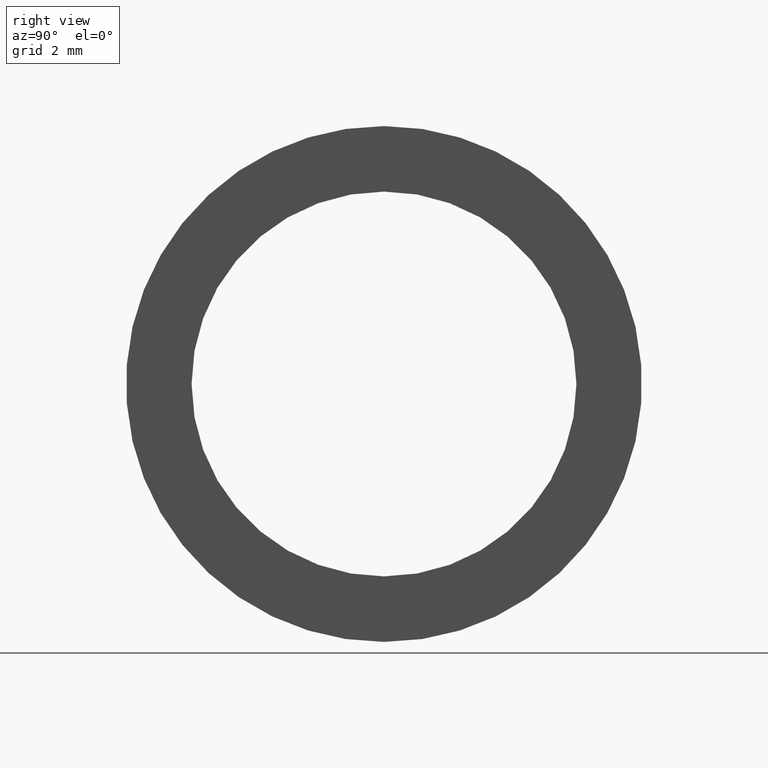
[diagram: clean part render]
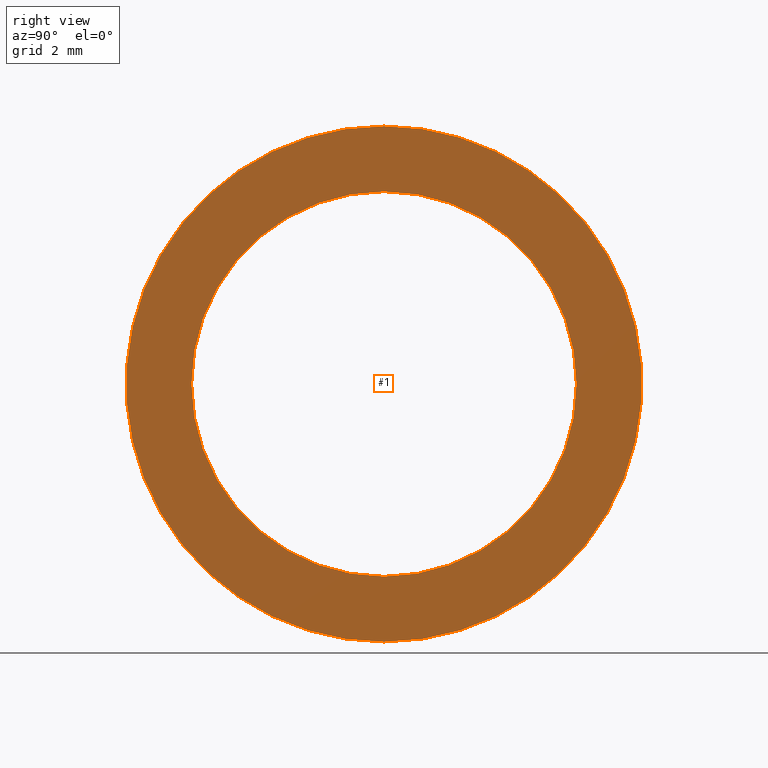
[diagram: same view with one face highlighted and labeled with its STEP entity id]
A machine part, right view. The second image highlights one B-rep face of the part: STEP entity #1.
In plain terms, the highlighted planar face has unit normal (1, 0, 0).
Its self-contained STEP definition (entity closure, byte-faithful):
#1 = ADVANCED_FACE ( 'NONE', ( #86, #85 ), #84, .T. ) ;
#2 = EDGE_CURVE ( 'NONE', #40, #39, #61, .T. ) ;
#3 = ORIENTED_EDGE ( 'NONE', *, *, #42, .T. ) ;
#4 = EDGE_LOOP ( 'NONE', ( #15, #3 ) ) ;
#5 = EDGE_LOOP ( 'NONE', ( #8, #7 ) ) ;
#7 = ORIENTED_EDGE ( 'NONE', *, *, #16, .F. ) ;
#8 = ORIENTED_EDGE ( 'NONE', *, *, #83, .F. ) ;
#15 = ORIENTED_EDGE ( 'NONE', *, *, #2, .T. ) ;
#16 = EDGE_CURVE ( 'NONE', #50, #43, #142, .T. ) ;
#39 = VERTEX_POINT ( 'NONE', #70 ) ;
#40 = VERTEX_POINT ( 'NONE', #69 ) ;
#42 = EDGE_CURVE ( 'NONE', #39, #40, #118, .T. ) ;
#43 = VERTEX_POINT ( 'NONE', #114 ) ;
#50 = VERTEX_POINT ( 'NONE', #100 ) ;
#53 = DIRECTION ( 'NONE',  ( 1.000000000000000000, 0.0000000000000000000, 0.0000000000000000000 ) ) ;
#54 = CARTESIAN_POINT ( 'NONE',  ( 0.07999999999999996000, -0.2349999999999999600, 0.0000000000000000000 ) ) ;
#55 = AXIS2_PLACEMENT_3D ( 'NONE', #54, #53, #63 ) ;
#60 = CARTESIAN_POINT ( 'NONE',  ( 0.07999999999999996000, 0.0000000000000000000, 0.0000000000000000000 ) ) ;
#61 = CIRCLE ( 'NONE', #151, 0.2349999999999999600 ) ;
#63 = DIRECTION ( 'NONE',  ( 0.0000000000000000000, 0.0000000000000000000, -1.000000000000000000 ) ) ;
#67 = CARTESIAN_POINT ( 'NONE',  ( 0.07999999999999996000, 0.0000000000000000000, 0.0000000000000000000 ) ) ;
#69 = CARTESIAN_POINT ( 'NONE',  ( 0.07999999999999996000, 0.0000000000000000000, 0.2349999999999999600 ) ) ;
#70 = CARTESIAN_POINT ( 'NONE',  ( 0.07999999999999996000, 2.877919977996279200E-017, -0.2349999999999999600 ) ) ;
#83 = EDGE_CURVE ( 'NONE', #43, #50, #175, .T. ) ;
#84 = PLANE ( 'NONE',  #55 ) ;
#85 = FACE_OUTER_BOUND ( 'NONE', #5, .T. ) ;
#86 = FACE_BOUND ( 'NONE', #4, .T. ) ;
#100 = CARTESIAN_POINT ( 'NONE',  ( 0.07999999999999996000, 3.857637417314163300E-017, -0.3150000000000000600 ) ) ;
#114 = CARTESIAN_POINT ( 'NONE',  ( 0.07999999999999996000, 0.0000000000000000000, 0.3150000000000000600 ) ) ;
#115 = DIRECTION ( 'NONE',  ( 0.0000000000000000000, 0.0000000000000000000, 1.000000000000000000 ) ) ;
#116 = DIRECTION ( 'NONE',  ( -1.000000000000000000, 0.0000000000000000000, 0.0000000000000000000 ) ) ;
#117 = AXIS2_PLACEMENT_3D ( 'NONE', #67, #116, #115 ) ;
#118 = CIRCLE ( 'NONE', #117, 0.2349999999999999600 ) ;
#138 = DIRECTION ( 'NONE',  ( 0.0000000000000000000, 0.0000000000000000000, 1.000000000000000000 ) ) ;
#139 = DIRECTION ( 'NONE',  ( -1.000000000000000000, 0.0000000000000000000, 0.0000000000000000000 ) ) ;
#140 = CARTESIAN_POINT ( 'NONE',  ( 0.07999999999999996000, 0.0000000000000000000, 0.0000000000000000000 ) ) ;
#141 = AXIS2_PLACEMENT_3D ( 'NONE', #140, #139, #138 ) ;
#142 = CIRCLE ( 'NONE', #141, 0.3150000000000000600 ) ;
#149 = DIRECTION ( 'NONE',  ( 0.0000000000000000000, 0.0000000000000000000, 1.000000000000000000 ) ) ;
#150 = DIRECTION ( 'NONE',  ( -1.000000000000000000, 0.0000000000000000000, 0.0000000000000000000 ) ) ;
#151 = AXIS2_PLACEMENT_3D ( 'NONE', #60, #150, #149 ) ;
#167 = DIRECTION ( 'NONE',  ( 0.0000000000000000000, 0.0000000000000000000, 1.000000000000000000 ) ) ;
#168 = DIRECTION ( 'NONE',  ( -1.000000000000000000, 0.0000000000000000000, 0.0000000000000000000 ) ) ;
#169 = CARTESIAN_POINT ( 'NONE',  ( 0.07999999999999996000, 0.0000000000000000000, 0.0000000000000000000 ) ) ;
#170 = AXIS2_PLACEMENT_3D ( 'NONE', #169, #168, #167 ) ;
#175 = CIRCLE ( 'NONE', #170, 0.3150000000000000600 ) ;